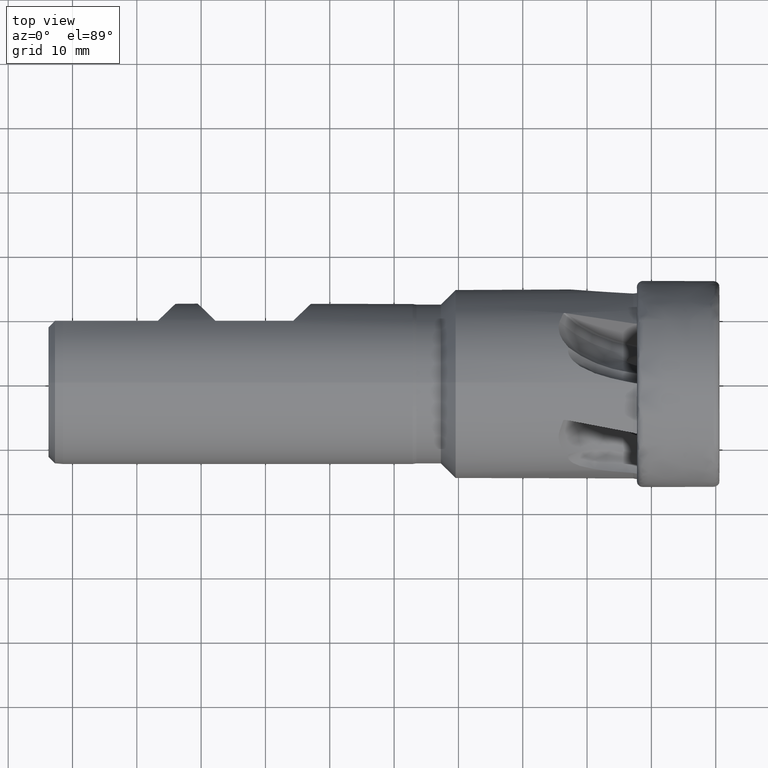
[diagram: clean part render]
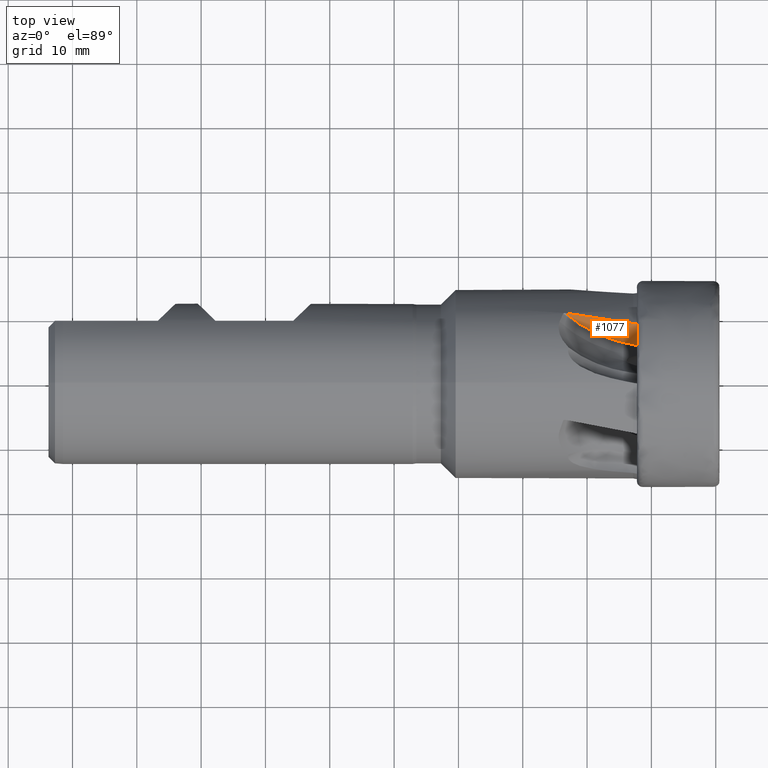
[diagram: same view with one face highlighted and labeled with its STEP entity id]
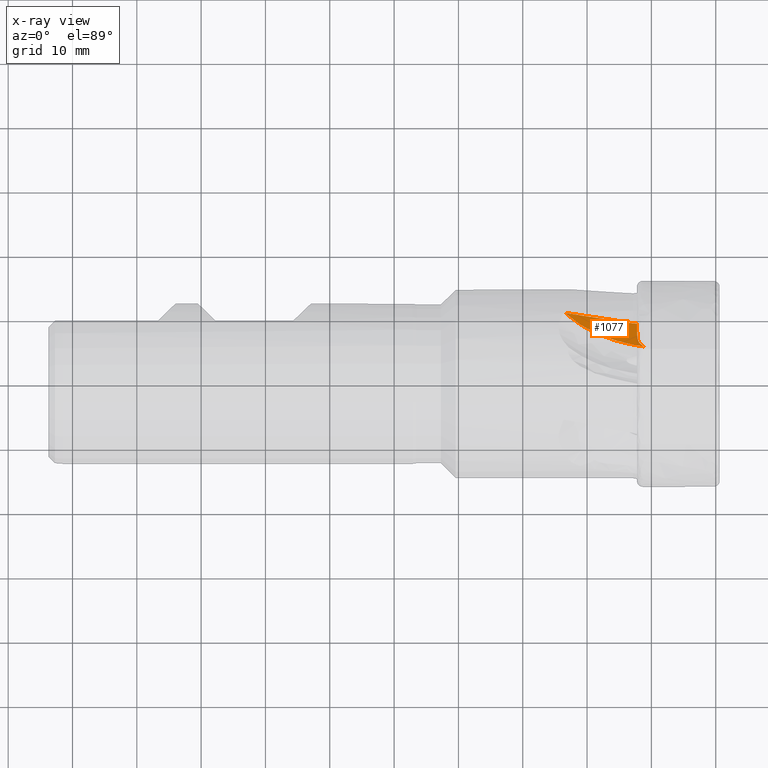
[diagram: x-ray of the same camera — body ghosted, the highlighted face saturated]
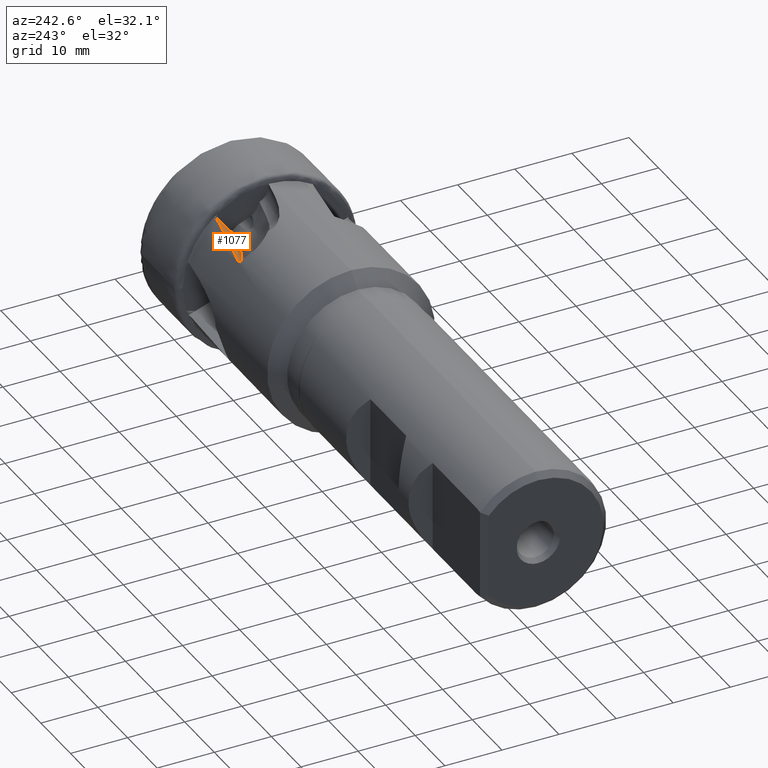
[diagram: same view with one face highlighted and labeled with its STEP entity id]
A machine part, top view. The second image highlights one B-rep face of the part: STEP entity #1077.
The next image is the same camera in x-ray: the body ghosted, the highlighted face saturated — about 0% of this face is hidden behind the body in this view.
A second angle (auxiliary view) of the same face is appended — the face is thin or edge-on in the first view.
In plain terms, the highlighted planar face has unit normal (0.2079, 0.7913, -0.5749).
Its self-contained STEP definition (entity closure, byte-faithful):
#5 = VERTEX_POINT ( 'NONE', #911 ) ;
#14 = VERTEX_POINT ( 'NONE', #923 ) ;
#65 = CARTESIAN_POINT ( 'NONE',  ( -23.40891488118200000, 10.86427515589886600, 9.887549005538161900 ) ) ;
#182 = VERTEX_POINT ( 'NONE', #927 ) ;
#297 =( BOUNDED_CURVE ( )  B_SPLINE_CURVE ( 3, ( #6378, #6388, #6392, #6393 ),
 .UNSPECIFIED., .F., .F. ) 
 B_SPLINE_CURVE_WITH_KNOTS ( ( 4, 4 ),
 ( 2.571562982212596300, 2.576315787946328800 ),
 .UNSPECIFIED. ) 
 CURVE ( )  GEOMETRIC_REPRESENTATION_ITEM ( )  RATIONAL_B_SPLINE_CURVE ( ( 1.000000000000000000, 0.9999981175706906800, 0.9999981175706906800, 1.000000000000000000 ) ) 
 REPRESENTATION_ITEM ( '' )  );
#299 = B_SPLINE_CURVE_WITH_KNOTS ( 'NONE', 3,
 ( #6404, #6396, #6408, #6409, #6410, #6411, #6412, #6413, #6414, #6415, #6416, #6417, #6418, #6419, #6420, #6421, #6422, #6423, #6424 ),
 .UNSPECIFIED., .F., .F.,
 ( 4, 2, 2, 2, 2, 2, 2, 2, 1, 4 ),
 ( 0.0000000000000000000, 0.0003743794955466381100, 0.0007487589910932762200, 0.001123138486639914200, 0.001497517982186554200, 0.002246276973279833200, 0.002995035964373113100, 0.003743794955466392600, 0.004492553946559670700, 0.005990071928746221900 ),
 .UNSPECIFIED. ) ;
#300 = B_SPLINE_CURVE_WITH_KNOTS ( 'NONE', 3,
 ( #6407, #6406, #6427, #6428, #6429, #6430, #6431, #6432, #6433, #6434, #6435, #6436, #6437, #6438 ),
 .UNSPECIFIED., .F., .F.,
 ( 4, 2, 2, 2, 2, 2, 4 ),
 ( 0.0000000000000000000, 0.001571446037001627700, 0.003142892074003255300, 0.006285784148006508100, 0.007857230185008133600, 0.009428676222009760000, 0.01257156829601299700 ),
 .UNSPECIFIED. ) ;
#617 =( BOUNDED_CURVE ( )  B_SPLINE_CURVE ( 3, ( #4223, #4222, #4229, #4230 ),
 .UNSPECIFIED., .F., .F. ) 
 B_SPLINE_CURVE_WITH_KNOTS ( ( 4, 4 ),
 ( 1.620524715425587100, 1.774908251763626100 ),
 .UNSPECIFIED. ) 
 CURVE ( )  GEOMETRIC_REPRESENTATION_ITEM ( )  RATIONAL_B_SPLINE_CURVE ( ( 1.000000000000000000, 0.9980147963504875100, 0.9980147963504875100, 1.000000000000000000 ) ) 
 REPRESENTATION_ITEM ( '' )  );
#679 = VERTEX_POINT ( 'NONE', #65 ) ;
#899 = EDGE_CURVE ( 'NONE', #1014, #679, #617, .T. ) ;
#911 = CARTESIAN_POINT ( 'NONE',  ( -12.69694427332221800, 5.953090163376101500, 7.001575814245548200 ) ) ;
#923 = CARTESIAN_POINT ( 'NONE',  ( -12.24596204722106700, 9.177759056433945500, 11.60303724343524200 ) ) ;
#927 = CARTESIAN_POINT ( 'NONE',  ( -11.08860416639962500, 5.676516989937110400, 7.202517986854382500 ) ) ;
#1014 = VERTEX_POINT ( 'NONE', #4323 ) ;
#1077 = ADVANCED_FACE ( 'NONE', ( #2969 ), #5098, .F. ) ;
#1361 = ORIENTED_EDGE ( 'NONE', *, *, #1803, .T. ) ;
#1362 = ORIENTED_EDGE ( 'NONE', *, *, #1804, .T. ) ;
#1363 = ORIENTED_EDGE ( 'NONE', *, *, #1799, .T. ) ;
#1364 = ORIENTED_EDGE ( 'NONE', *, *, #899, .T. ) ;
#1365 = ORIENTED_EDGE ( 'NONE', *, *, #1805, .T. ) ;
#1799 = EDGE_CURVE ( 'NONE', #14, #1014, #297, .T. ) ;
#1803 = EDGE_CURVE ( 'NONE', #5, #182, #3169, .T. ) ;
#1804 = EDGE_CURVE ( 'NONE', #182, #14, #299, .T. ) ;
#1805 = EDGE_CURVE ( 'NONE', #679, #5, #300, .T. ) ;
#2157 = AXIS2_PLACEMENT_3D ( 'NONE', #5059, #5100, #5101 ) ;
#2532 = EDGE_LOOP ( 'NONE', ( #1361, #1362, #1363, #1364, #1365 ) ) ;
#2969 = FACE_OUTER_BOUND ( 'NONE', #2532, .T. ) ;
#3169 = LINE ( 'NONE', #6391, #3171 ) ;
#3171 = VECTOR ( 'NONE', #6405, 1000.000000000000100 ) ;
#4222 = CARTESIAN_POINT ( 'NONE',  ( -16.39131085248836000, 9.803973012575154300, 10.96589407783718800 ) ) ;
#4223 = CARTESIAN_POINT ( 'NONE',  ( -12.83564090980897800, 9.214642771510746400, 11.44056198765794000 ) ) ;
#4229 = CARTESIAN_POINT ( 'NONE',  ( -19.92274612780926500, 10.35494426417730600, 10.44719335723371000 ) ) ;
#4230 = CARTESIAN_POINT ( 'NONE',  ( -23.40891488118200000, 10.86427515589886600, 9.887549005538161900 ) ) ;
#4323 = CARTESIAN_POINT ( 'NONE',  ( -12.83564090980897800, 9.214642771510746400, 11.44056198765794000 ) ) ;
#5059 = CARTESIAN_POINT ( 'NONE',  ( -12.71405963858607200, 5.838476303145355000, 6.837634062502090200 ) ) ;
#5098 = PLANE ( 'NONE',  #2157 ) ;
#5100 = DIRECTION ( 'NONE',  ( 0.2079116908177434400, 0.7913380320007276100, -0.5749407342766057500 ) ) ;
#5101 = DIRECTION ( 'NONE',  ( 0.0000000000000000000, 0.5877852522924798000, 0.8090169943749425700 ) ) ;
#6378 = CARTESIAN_POINT ( 'NONE',  ( -12.24596204722106700, 9.177759056433945500, 11.60303724343524200 ) ) ;
#6388 = CARTESIAN_POINT ( 'NONE',  ( -12.44325401035313000, 9.190212172605258800, 11.54883221091921200 ) ) ;
#6391 = CARTESIAN_POINT ( 'NONE',  ( -0.8926092101882189300, 3.923194624058274500, 8.476381250968351800 ) ) ;
#6392 = CARTESIAN_POINT ( 'NONE',  ( -12.63981400122609200, 9.202506767441230200, 11.49467369037718200 ) ) ;
#6393 = CARTESIAN_POINT ( 'NONE',  ( -12.83564090980897800, 9.214642771510746400, 11.44056198765794000 ) ) ;
#6396 = CARTESIAN_POINT ( 'NONE',  ( -11.19625077919345200, 5.731492356858749000, 7.239257616058245600 ) ) ;
#6404 = CARTESIAN_POINT ( 'NONE',  ( -11.08860416639962500, 5.676516989937110400, 7.202517986854382500 ) ) ;
#6405 = DIRECTION ( 'NONE',  ( 0.9781476007338090200, -0.1682040912007831700, 0.1222074256418632900 ) ) ;
#6406 = CARTESIAN_POINT ( 'NONE',  ( -23.08422013689996200, 10.56798735168226600, 9.597160858277501200 ) ) ;
#6407 = CARTESIAN_POINT ( 'NONE',  ( -23.40891488118200000, 10.86427515589886600, 9.887549005538161900 ) ) ;
#6408 = CARTESIAN_POINT ( 'NONE',  ( -11.29789455866680100, 5.789992591961153700, 7.283019571623568400 ) ) ;
#6409 = CARTESIAN_POINT ( 'NONE',  ( -11.48716830256999400, 5.915221984759815800, 7.386937338380513500 ) ) ;
#6410 = CARTESIAN_POINT ( 'NONE',  ( -11.57553970676283100, 5.982659487851284700, 7.447799981828117300 ) ) ;
#6411 = CARTESIAN_POINT ( 'NONE',  ( -11.73249323725587700, 6.123632510369669800, 7.585074722675224200 ) ) ;
#6412 = CARTESIAN_POINT ( 'NONE',  ( -11.80031565725188100, 6.196246046419459800, 7.660492545961111500 ) ) ;
#6413 = CARTESIAN_POINT ( 'NONE',  ( -11.91673885885499300, 6.345310510719840200, 7.823560892897688700 ) ) ;
#6414 = CARTESIAN_POINT ( 'NONE',  ( -11.96561287196322000, 6.422423939625161900, 7.912024463725312100 ) ) ;
#6415 = CARTESIAN_POINT ( 'NONE',  ( -12.08434610734691700, 6.652012291016640200, 8.185089072085467900 ) ) ;
#6416 = CARTESIAN_POINT ( 'NONE',  ( -12.12854466619497500, 6.803743208663960700, 8.377945556332351300 ) ) ;
#6417 = CARTESIAN_POINT ( 'NONE',  ( -12.18319982659577700, 7.105923216483255100, 8.774096102481099300 ) ) ;
#6418 = CARTESIAN_POINT ( 'NONE',  ( -12.19317987749638000, 7.255173079646223900, 8.975911901600916600 ) ) ;
#6419 = CARTESIAN_POINT ( 'NONE',  ( -12.20458260955579300, 7.551478764218973800, 9.379618200633725400 ) ) ;
#6420 = CARTESIAN_POINT ( 'NONE',  ( -12.20734834873064400, 7.699163656563142100, 9.581888861977610400 ) ) ;
#6421 = CARTESIAN_POINT ( 'NONE',  ( -12.21507004566333900, 7.994882570316582000, 9.986118686573703900 ) ) ;
#6422 = CARTESIAN_POINT ( 'NONE',  ( -12.22665327479270100, 8.438461049935927600, 10.59246332622611000 ) ) ;
#6423 = CARTESIAN_POINT ( 'NONE',  ( -12.23823820942080300, 8.882039801418180500, 11.19880772331842200 ) ) ;
#6424 = CARTESIAN_POINT ( 'NONE',  ( -12.24596204722106700, 9.177759056433945500, 11.60303724343524200 ) ) ;
#6427 = CARTESIAN_POINT ( 'NONE',  ( -22.73913876243287600, 10.28052121719331800, 9.326286968477147000 ) ) ;
#6428 = CARTESIAN_POINT ( 'NONE',  ( -22.00889491713591200, 9.722932775578010800, 8.822905158466047800 ) ) ;
#6429 = CARTESIAN_POINT ( 'NONE',  ( -21.62280310377640500, 9.452216260733209200, 8.589915452962815200 ) ) ;
#6430 = CARTESIAN_POINT ( 'NONE',  ( -20.40915494903876500, 8.670438265754508900, 7.952773225495691100 ) ) ;
#6431 = CARTESIAN_POINT ( 'NONE',  ( -19.54421022644510200, 8.200104428815445000, 7.618197987214115200 ) ) ;
#6432 = CARTESIAN_POINT ( 'NONE',  ( -18.16569518869293300, 7.568448810475064000, 7.247301112301880900 ) ) ;
#6433 = CARTESIAN_POINT ( 'NONE',  ( -17.69181745305910900, 7.370040062375435000, 7.145579902601956400 ) ) ;
#6434 = CARTESIAN_POINT ( 'NONE',  ( -16.71871057696766600, 7.000210792041651900, 6.988451235903253800 ) ) ;
#6435 = CARTESIAN_POINT ( 'NONE',  ( -16.22725175651237000, 6.831687904997184400, 6.934222106544519100 ) ) ;
#6436 = CARTESIAN_POINT ( 'NONE',  ( -14.73868401389095900, 6.373540604412559300, 6.841936512947342800 ) ) ;
#6437 = CARTESIAN_POINT ( 'NONE',  ( -13.72755778706557600, 6.130756193984330700, 6.873418759414825300 ) ) ;
#6438 = CARTESIAN_POINT ( 'NONE',  ( -12.69694427332221800, 5.953090163376101500, 7.001575814245548200 ) ) ;